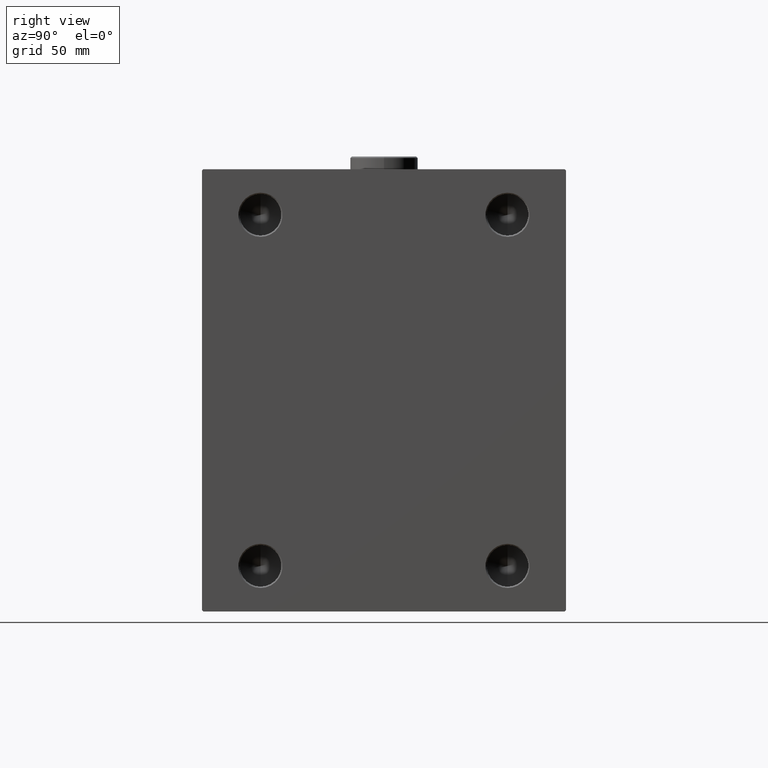
[diagram: clean part render]
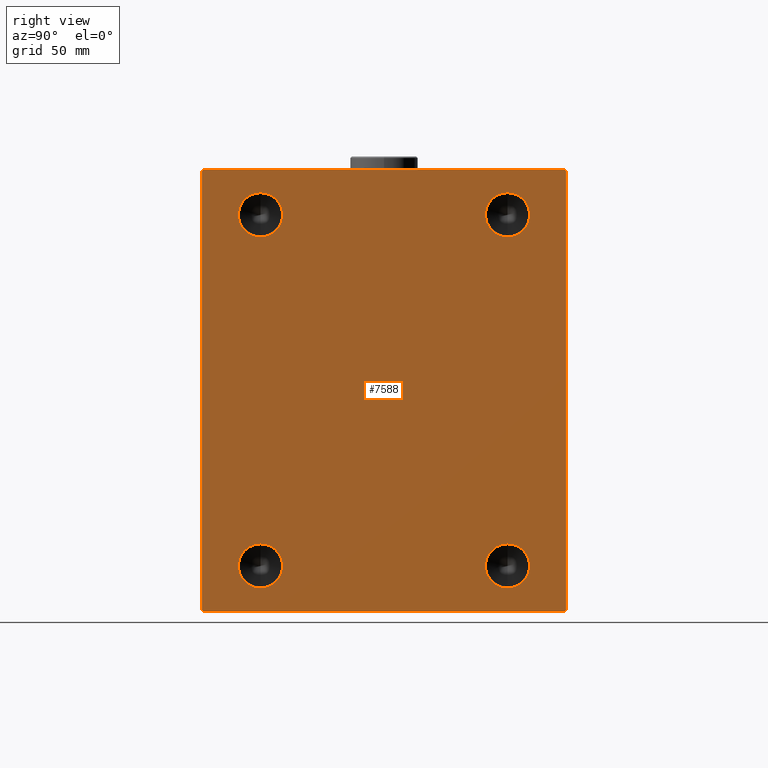
[diagram: same view with one face highlighted and labeled with its STEP entity id]
A machine part, right view. The second image highlights one B-rep face of the part: STEP entity #7588.
In plain terms, the highlighted planar face has unit normal (1, 0, 0).
Its self-contained STEP definition (entity closure, byte-faithful):
#113 = CARTESIAN_POINT ( 'NONE',  ( 155.0000000000000000, -47.50000000000000000, 67.49999999999998579 ) ) ;
#115 = CARTESIAN_POINT ( 'NONE',  ( 155.0000000000000000, -47.50000000000000000, 58.99999999999997158 ) ) ;
#426 = EDGE_CURVE ( 'NONE', #8699, #1873, #15130, .T. ) ;
#522 = EDGE_LOOP ( 'NONE', ( #43743, #4744 ) ) ;
#759 = CIRCLE ( 'NONE', #29505, 8.500000000000007105 ) ;
#775 = VERTEX_POINT ( 'NONE', #12926 ) ;
#1681 = EDGE_CURVE ( 'NONE', #44432, #775, #13526, .T. ) ;
#1873 = VERTEX_POINT ( 'NONE', #115 ) ;
#3161 = EDGE_CURVE ( 'NONE', #12415, #17526, #25501, .T. ) ;
#3263 = LINE ( 'NONE', #42065, #29818 ) ;
#3361 = DIRECTION ( 'NONE',  ( -0.000000000000000000, 0.7071067811865376918, -0.7071067811865574537 ) ) ;
#3790 = DIRECTION ( 'NONE',  ( 0.000000000000000000, 0.000000000000000000, -1.000000000000000000 ) ) ;
#3987 = VERTEX_POINT ( 'NONE', #9911 ) ;
#4093 = DIRECTION ( 'NONE',  ( 1.000000000000000000, -0.000000000000000000, -0.000000000000000000 ) ) ;
#4619 = ORIENTED_EDGE ( 'NONE', *, *, #27075, .T. ) ;
#4744 = ORIENTED_EDGE ( 'NONE', *, *, #14420, .F. ) ;
#5601 = DIRECTION ( 'NONE',  ( 0.000000000000000000, -0.7071067811865672237, -0.7071067811865279218 ) ) ;
#5692 = VECTOR ( 'NONE', #7418, 999.9999999999998863 ) ;
#5836 = PLANE ( 'NONE',  #44198 ) ;
#6219 = VERTEX_POINT ( 'NONE', #7768 ) ;
#6239 = ORIENTED_EDGE ( 'NONE', *, *, #27703, .F. ) ;
#6786 = LINE ( 'NONE', #20651, #19949 ) ;
#7037 = DIRECTION ( 'NONE',  ( 0.000000000000000000, 0.000000000000000000, -1.000000000000000000 ) ) ;
#7133 = LINE ( 'NONE', #28360, #28534 ) ;
#7348 = CARTESIAN_POINT ( 'NONE',  ( 155.0000000000000000, -47.50000000000000000, -76.00000000000004263 ) ) ;
#7418 = DIRECTION ( 'NONE',  ( -0.000000000000000000, 0.7071067811865574537, 0.7071067811865376918 ) ) ;
#7588 = ADVANCED_FACE ( 'NONE', ( #26406, #41186, #12547, #16701, #40287 ), #5836, .T. ) ;
#7768 = CARTESIAN_POINT ( 'NONE',  ( 155.0000000000000000, -47.50000000000000000, -59.00000000000000000 ) ) ;
#8353 = CARTESIAN_POINT ( 'NONE',  ( 155.0000000000000000, -47.50000000000000000, 76.00000000000001421 ) ) ;
#8699 = VERTEX_POINT ( 'NONE', #8353 ) ;
#8868 = DIRECTION ( 'NONE',  ( 1.000000000000000000, -0.000000000000000000, -0.000000000000000000 ) ) ;
#8961 = EDGE_LOOP ( 'NONE', ( #34275, #23418 ) ) ;
#9154 = DIRECTION ( 'NONE',  ( 0.000000000000000000, 0.000000000000000000, -1.000000000000000000 ) ) ;
#9553 = VERTEX_POINT ( 'NONE', #32264 ) ;
#9911 = CARTESIAN_POINT ( 'NONE',  ( 155.0000000000000000, 69.50000000000000000, -85.00000000000000000 ) ) ;
#10529 = DIRECTION ( 'NONE',  ( 1.000000000000000000, -0.000000000000000000, -0.000000000000000000 ) ) ;
#10735 = EDGE_CURVE ( 'NONE', #775, #3987, #26168, .T. ) ;
#11183 = EDGE_CURVE ( 'NONE', #19140, #15157, #36178, .T. ) ;
#11372 = EDGE_CURVE ( 'NONE', #6219, #40399, #759, .T. ) ;
#11388 = EDGE_CURVE ( 'NONE', #13174, #20049, #6786, .T. ) ;
#11905 = VECTOR ( 'NONE', #5601, 1000.000000000000000 ) ;
#12170 = DIRECTION ( 'NONE',  ( 1.000000000000000000, -0.000000000000000000, -0.000000000000000000 ) ) ;
#12415 = VERTEX_POINT ( 'NONE', #23435 ) ;
#12547 = FACE_BOUND ( 'NONE', #522, .T. ) ;
#12926 = CARTESIAN_POINT ( 'NONE',  ( 155.0000000000000000, -69.50000000000000000, -85.00000000000000000 ) ) ;
#13002 = DIRECTION ( 'NONE',  ( 0.000000000000000000, 0.000000000000000000, -1.000000000000000000 ) ) ;
#13174 = VERTEX_POINT ( 'NONE', #23891 ) ;
#13287 = VERTEX_POINT ( 'NONE', #18343 ) ;
#13526 = LINE ( 'NONE', #23906, #39504 ) ;
#13529 = EDGE_CURVE ( 'NONE', #9553, #24995, #37257, .T. ) ;
#13944 = CARTESIAN_POINT ( 'NONE',  ( 155.0000000000000000, -47.50000000000000000, -67.50000000000001421 ) ) ;
#14095 = ORIENTED_EDGE ( 'NONE', *, *, #13529, .T. ) ;
#14108 = ORIENTED_EDGE ( 'NONE', *, *, #10735, .T. ) ;
#14167 = CARTESIAN_POINT ( 'NONE',  ( 155.0000000000000000, 70.00000000000000000, 85.00000000000001421 ) ) ;
#14420 = EDGE_CURVE ( 'NONE', #40399, #6219, #42188, .T. ) ;
#15130 = CIRCLE ( 'NONE', #40944, 8.500000000000007105 ) ;
#15157 = VERTEX_POINT ( 'NONE', #21446 ) ;
#16701 = FACE_BOUND ( 'NONE', #16760, .T. ) ;
#16760 = EDGE_LOOP ( 'NONE', ( #31008, #6239 ) ) ;
#17526 = VERTEX_POINT ( 'NONE', #45113 ) ;
#17736 = ORIENTED_EDGE ( 'NONE', *, *, #26809, .T. ) ;
#18183 = DIRECTION ( 'NONE',  ( 0.000000000000000000, 0.000000000000000000, -1.000000000000000000 ) ) ;
#18343 = CARTESIAN_POINT ( 'NONE',  ( 155.0000000000000000, 69.50000000000000000, 85.00000000000001421 ) ) ;
#18489 = DIRECTION ( 'NONE',  ( 0.000000000000000000, 0.000000000000000000, -1.000000000000000000 ) ) ;
#18800 = CARTESIAN_POINT ( 'NONE',  ( 155.0000000000000000, -70.00000000000000000, -85.00000000000000000 ) ) ;
#19140 = VERTEX_POINT ( 'NONE', #43535 ) ;
#19705 = DIRECTION ( 'NONE',  ( 0.000000000000000000, 1.000000000000000000, 0.000000000000000000 ) ) ;
#19713 = CARTESIAN_POINT ( 'NONE',  ( 155.0000000000000000, 0.000000000000000000, 0.000000000000000000 ) ) ;
#19949 = VECTOR ( 'NONE', #32192, 1000.000000000000000 ) ;
#20049 = VERTEX_POINT ( 'NONE', #33549 ) ;
#20269 = VECTOR ( 'NONE', #24780, 1000.000000000000000 ) ;
#20651 = CARTESIAN_POINT ( 'NONE',  ( 155.0000000000000000, 70.00000000000001421, -85.00000000000000000 ) ) ;
#20675 = AXIS2_PLACEMENT_3D ( 'NONE', #21871, #4093, #18183 ) ;
#21142 = DIRECTION ( 'NONE',  ( 1.000000000000000000, -0.000000000000000000, -0.000000000000000000 ) ) ;
#21391 = CARTESIAN_POINT ( 'NONE',  ( 155.0000000000000000, 47.50000000000000000, 67.49999999999998579 ) ) ;
#21446 = CARTESIAN_POINT ( 'NONE',  ( 155.0000000000000000, 47.50000000000000000, 76.00000000000001421 ) ) ;
#21772 = DIRECTION ( 'NONE',  ( 0.000000000000000000, 0.000000000000000000, -1.000000000000000000 ) ) ;
#21871 = CARTESIAN_POINT ( 'NONE',  ( 155.0000000000000000, 47.50000000000000000, 67.49999999999998579 ) ) ;
#22744 = DIRECTION ( 'NONE',  ( 0.000000000000000000, 0.000000000000000000, -1.000000000000000000 ) ) ;
#23418 = ORIENTED_EDGE ( 'NONE', *, *, #11183, .F. ) ;
#23435 = CARTESIAN_POINT ( 'NONE',  ( 155.0000000000000000, 47.50000000000000000, -59.00000000000000000 ) ) ;
#23598 = CARTESIAN_POINT ( 'NONE',  ( 155.0000000000000000, -77.24999999999803890, 77.25000000000234479 ) ) ;
#23891 = CARTESIAN_POINT ( 'NONE',  ( 155.0000000000000000, 70.00000000000001421, -84.50000000000000000 ) ) ;
#23906 = CARTESIAN_POINT ( 'NONE',  ( 155.0000000000000000, -77.25000000000098055, -77.24999999999883471 ) ) ;
#24619 = DIRECTION ( 'NONE',  ( 0.000000000000000000, 0.000000000000000000, -1.000000000000000000 ) ) ;
#24780 = DIRECTION ( 'NONE',  ( 0.000000000000000000, -1.000000000000000000, -1.982541115402065110E-16 ) ) ;
#24995 = VERTEX_POINT ( 'NONE', #44730 ) ;
#25418 = LINE ( 'NONE', #39082, #5692 ) ;
#25501 = CIRCLE ( 'NONE', #38818, 8.500000000000007105 ) ;
#25940 = AXIS2_PLACEMENT_3D ( 'NONE', #40816, #12170, #9154 ) ;
#26168 = LINE ( 'NONE', #18800, #38383 ) ;
#26311 = CARTESIAN_POINT ( 'NONE',  ( 155.0000000000000000, 47.50000000000000000, -67.50000000000001421 ) ) ;
#26406 = FACE_BOUND ( 'NONE', #8961, .T. ) ;
#26530 = DIRECTION ( 'NONE',  ( 1.000000000000000000, -0.000000000000000000, -0.000000000000000000 ) ) ;
#26591 = EDGE_CURVE ( 'NONE', #1873, #8699, #34289, .T. ) ;
#26724 = ORIENTED_EDGE ( 'NONE', *, *, #33901, .T. ) ;
#26809 = EDGE_CURVE ( 'NONE', #13287, #9553, #31723, .T. ) ;
#27075 = EDGE_CURVE ( 'NONE', #24995, #44432, #3263, .T. ) ;
#27336 = CIRCLE ( 'NONE', #29543, 8.500000000000007105 ) ;
#27703 = EDGE_CURVE ( 'NONE', #17526, #12415, #35774, .T. ) ;
#28360 = CARTESIAN_POINT ( 'NONE',  ( 155.0000000000000000, 77.25000000000289901, 77.24999999999647571 ) ) ;
#28534 = VECTOR ( 'NONE', #35315, 1000.000000000000000 ) ;
#29505 = AXIS2_PLACEMENT_3D ( 'NONE', #13944, #38909, #3790 ) ;
#29543 = AXIS2_PLACEMENT_3D ( 'NONE', #21391, #10529, #24619 ) ;
#29818 = VECTOR ( 'NONE', #35816, 1000.000000000000000 ) ;
#31008 = ORIENTED_EDGE ( 'NONE', *, *, #3161, .F. ) ;
#31723 = LINE ( 'NONE', #14167, #20269 ) ;
#32192 = DIRECTION ( 'NONE',  ( 0.000000000000000000, -8.163404592832031500E-17, 1.000000000000000000 ) ) ;
#32195 = EDGE_CURVE ( 'NONE', #20049, #13287, #7133, .T. ) ;
#32264 = CARTESIAN_POINT ( 'NONE',  ( 155.0000000000000000, -69.49999999999997158, 84.99999999999998579 ) ) ;
#32561 = ORIENTED_EDGE ( 'NONE', *, *, #11388, .T. ) ;
#33549 = CARTESIAN_POINT ( 'NONE',  ( 155.0000000000000000, 70.00000000000000000, 84.49999999999997158 ) ) ;
#33803 = DIRECTION ( 'NONE',  ( 1.000000000000000000, 0.000000000000000000, 0.000000000000000000 ) ) ;
#33901 = EDGE_CURVE ( 'NONE', #3987, #13174, #25418, .T. ) ;
#34150 = EDGE_LOOP ( 'NONE', ( #43822, #37449 ) ) ;
#34275 = ORIENTED_EDGE ( 'NONE', *, *, #45332, .F. ) ;
#34289 = CIRCLE ( 'NONE', #40196, 8.500000000000007105 ) ;
#35185 = CARTESIAN_POINT ( 'NONE',  ( 155.0000000000000000, 47.50000000000000000, -67.50000000000001421 ) ) ;
#35247 = CARTESIAN_POINT ( 'NONE',  ( 155.0000000000000000, -70.00000000000000000, -84.49999999999998579 ) ) ;
#35315 = DIRECTION ( 'NONE',  ( -0.000000000000000000, -0.7071067811865181518, 0.7071067811865769936 ) ) ;
#35774 = CIRCLE ( 'NONE', #38017, 8.500000000000007105 ) ;
#35816 = DIRECTION ( 'NONE',  ( 0.000000000000000000, 0.000000000000000000, -1.000000000000000000 ) ) ;
#36178 = CIRCLE ( 'NONE', #20675, 8.500000000000007105 ) ;
#36611 = CARTESIAN_POINT ( 'NONE',  ( 155.0000000000000000, -47.50000000000000000, 67.49999999999998579 ) ) ;
#37257 = LINE ( 'NONE', #23598, #11905 ) ;
#37449 = ORIENTED_EDGE ( 'NONE', *, *, #26591, .F. ) ;
#38017 = AXIS2_PLACEMENT_3D ( 'NONE', #35185, #38896, #21772 ) ;
#38383 = VECTOR ( 'NONE', #19705, 1000.000000000000000 ) ;
#38818 = AXIS2_PLACEMENT_3D ( 'NONE', #26311, #26530, #18489 ) ;
#38896 = DIRECTION ( 'NONE',  ( 1.000000000000000000, -0.000000000000000000, -0.000000000000000000 ) ) ;
#38909 = DIRECTION ( 'NONE',  ( 1.000000000000000000, -0.000000000000000000, -0.000000000000000000 ) ) ;
#39082 = CARTESIAN_POINT ( 'NONE',  ( 155.0000000000000000, 77.24999999999904787, -77.25000000000119371 ) ) ;
#39214 = EDGE_LOOP ( 'NONE', ( #17736, #14095, #4619, #45477, #14108, #26724, #32561, #44222 ) ) ;
#39504 = VECTOR ( 'NONE', #3361, 999.9999999999998863 ) ;
#40196 = AXIS2_PLACEMENT_3D ( 'NONE', #36611, #8868, #22744 ) ;
#40287 = FACE_OUTER_BOUND ( 'NONE', #39214, .T. ) ;
#40399 = VERTEX_POINT ( 'NONE', #7348 ) ;
#40816 = CARTESIAN_POINT ( 'NONE',  ( 155.0000000000000000, -47.50000000000000000, -67.50000000000001421 ) ) ;
#40944 = AXIS2_PLACEMENT_3D ( 'NONE', #113, #21142, #7037 ) ;
#41186 = FACE_BOUND ( 'NONE', #34150, .T. ) ;
#42065 = CARTESIAN_POINT ( 'NONE',  ( 155.0000000000000000, -70.00000000000000000, 84.99999999999998579 ) ) ;
#42188 = CIRCLE ( 'NONE', #25940, 8.500000000000007105 ) ;
#43535 = CARTESIAN_POINT ( 'NONE',  ( 155.0000000000000000, 47.50000000000000000, 58.99999999999997158 ) ) ;
#43743 = ORIENTED_EDGE ( 'NONE', *, *, #11372, .F. ) ;
#43822 = ORIENTED_EDGE ( 'NONE', *, *, #426, .F. ) ;
#44198 = AXIS2_PLACEMENT_3D ( 'NONE', #19713, #33803, #13002 ) ;
#44222 = ORIENTED_EDGE ( 'NONE', *, *, #32195, .T. ) ;
#44432 = VERTEX_POINT ( 'NONE', #35247 ) ;
#44730 = CARTESIAN_POINT ( 'NONE',  ( 155.0000000000000000, -70.00000000000000000, 84.49999999999998579 ) ) ;
#45113 = CARTESIAN_POINT ( 'NONE',  ( 155.0000000000000000, 47.50000000000000000, -76.00000000000004263 ) ) ;
#45332 = EDGE_CURVE ( 'NONE', #15157, #19140, #27336, .T. ) ;
#45477 = ORIENTED_EDGE ( 'NONE', *, *, #1681, .T. ) ;